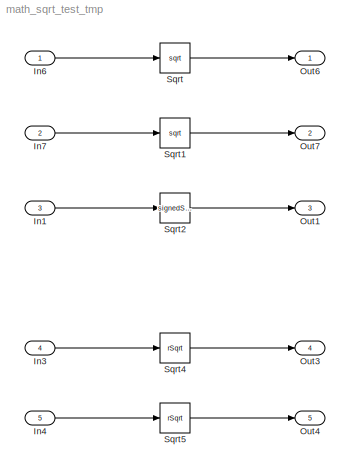
MODEL math_sqrt_test_tmp
KIND model
BLOCK [Inport] In1
  IconDisplay = Port number
  Port = 3
  SID = 22
BLOCK [Inport] In3
  IconDisplay = Port number
  OutDataTypeStr = double
  Port = 4
  SID = 28
BLOCK [Inport] In4
  IconDisplay = Port number
  OutDataTypeStr = uint32
  Port = 5
  SID = 29
BLOCK [Inport] In6
  IconDisplay = Port number
  OutDataTypeStr = uint32
  SID = 1
BLOCK [Inport] In7
  IconDisplay = Port number
  OutDataTypeStr = uint32
  Port = 2
  SID = 2
BLOCK [Outport] Out1
  IconDisplay = Port number
  Port = 3
  SID = 26
BLOCK [Outport] Out3
  IconDisplay = Port number
  Port = 4
  SID = 32
BLOCK [Outport] Out4
  IconDisplay = Port number
  Port = 5
  SID = 33
BLOCK [Outport] Out6
  IconDisplay = Port number
  SID = 10
BLOCK [Outport] Out7
  IconDisplay = Port number
  Port = 2
  SID = 11
BLOCK [Sqrt] Sqrt
  SID = 20
BLOCK [Sqrt] Sqrt1
  SID = 21
BLOCK [Sqrt] Sqrt2
  Operator = signedSqrt
  SID = 24
BLOCK [Sqrt] Sqrt4
  Operator = rSqrt
  SID = 30
BLOCK [Sqrt] Sqrt5
  AlgorithmType = Newton-Raphson
  Operator = rSqrt
  SID = 31
LINE In1:1 -> Sqrt2:1
LINE In3:1 -> Sqrt4:1
LINE In4:1 -> Sqrt5:1
LINE In6:1 -> Sqrt:1
LINE In7:1 -> Sqrt1:1
LINE Sqrt1:1 -> Out7:1
LINE Sqrt2:1 -> Out1:1
LINE Sqrt4:1 -> Out3:1
LINE Sqrt5:1 -> Out4:1
LINE Sqrt:1 -> Out6:1
